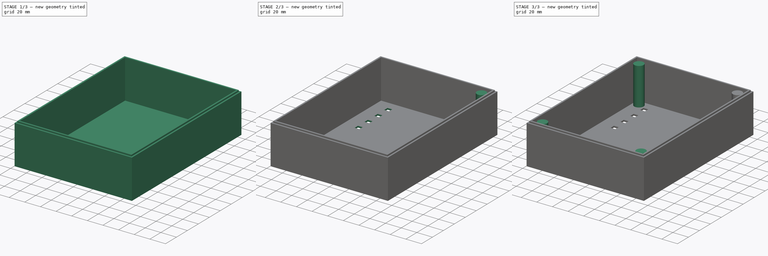
[diagram: build sequence overview — one tinted view per stage of 3, left to right]
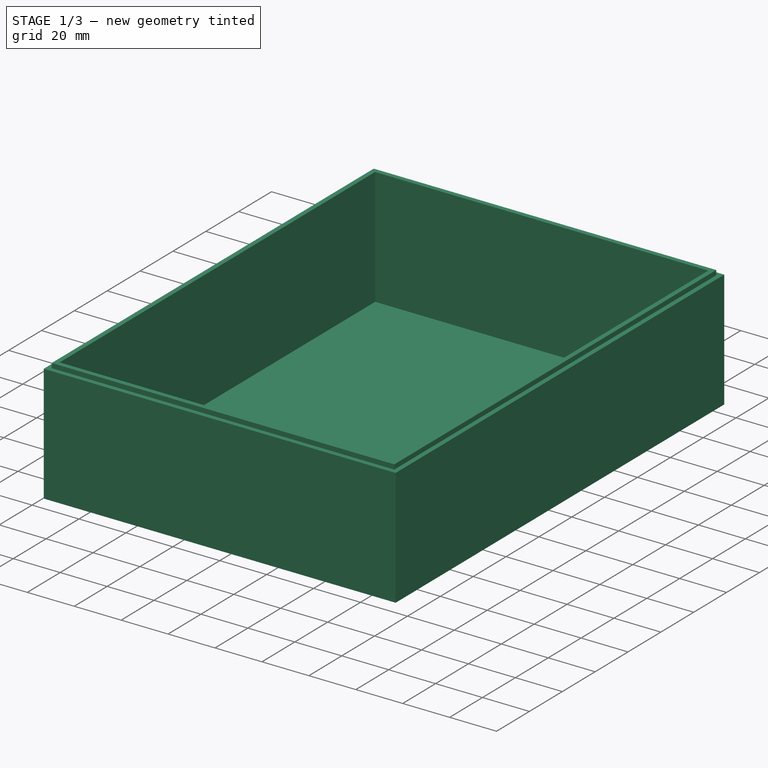
[diagram: stage 1 of 3 — iso view after this stage's code; geometry added in this stage tinted green]
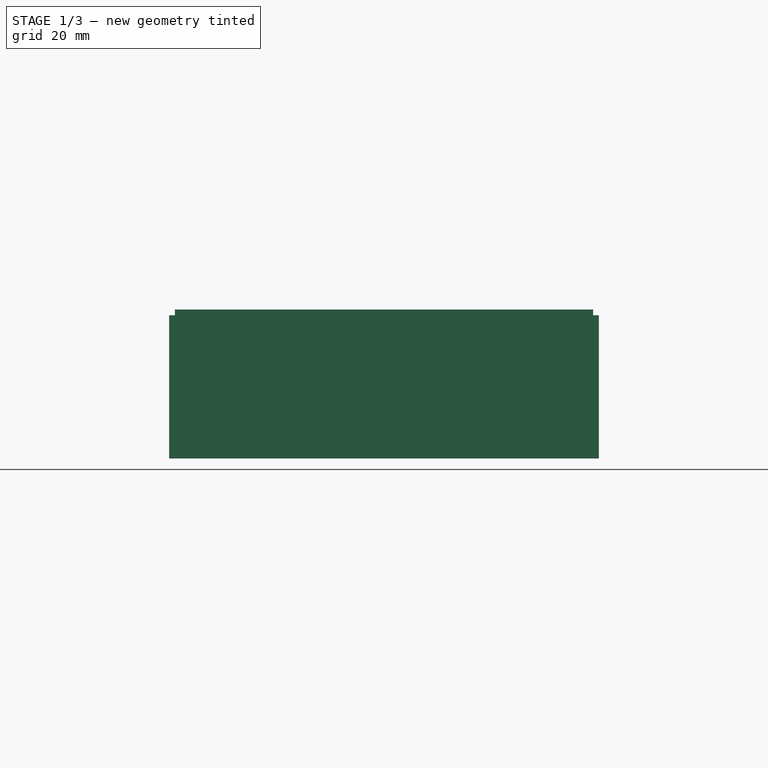
[diagram: stage 1 of 3 — front view after this stage's code; geometry added in this stage tinted green]
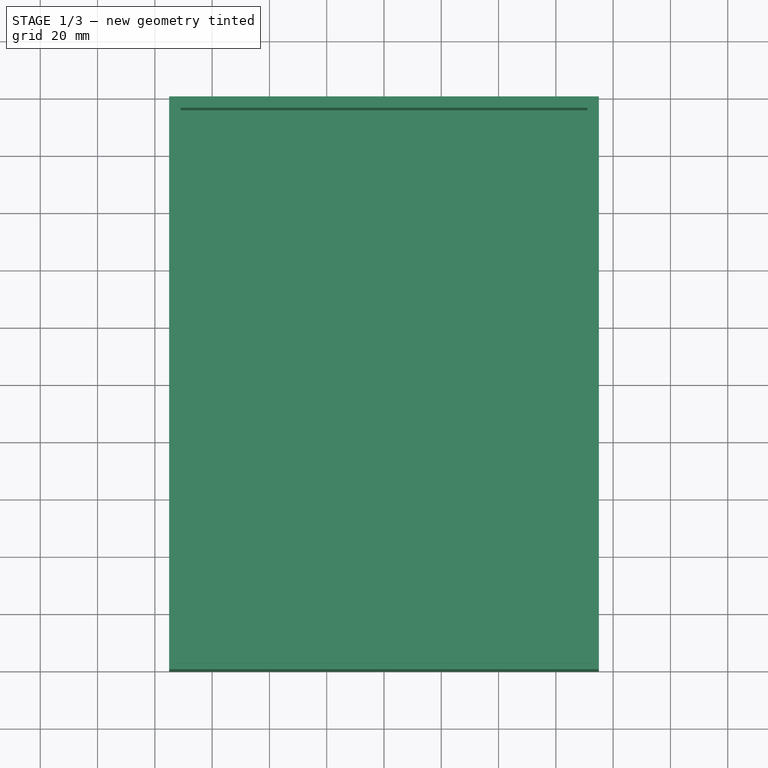
[diagram: stage 1 of 3 — top view after this stage's code; geometry added in this stage tinted green]
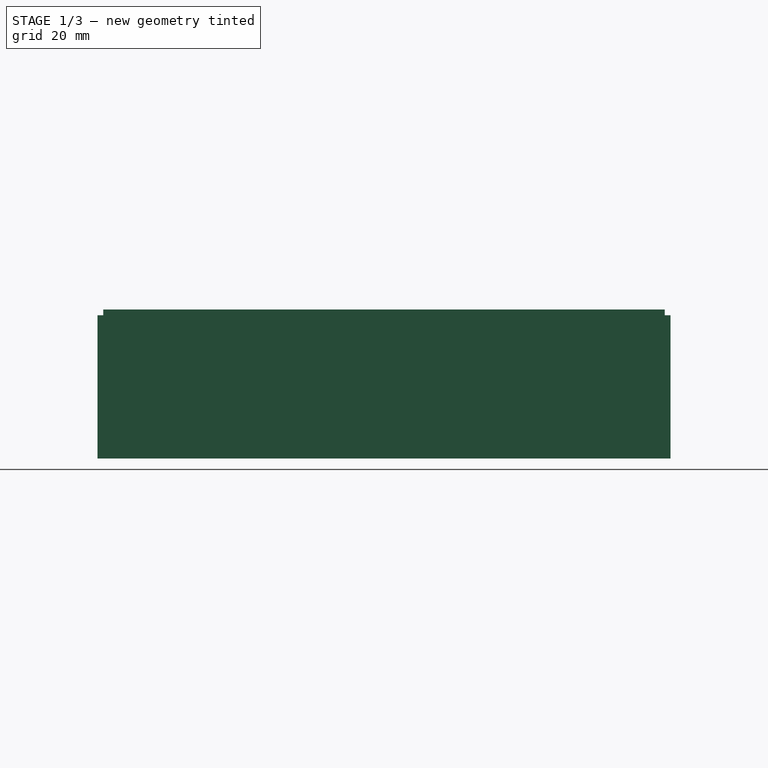
[diagram: stage 1 of 3 — right view after this stage's code; geometry added in this stage tinted green]
FCSTD DOCUMENT  (FreeCAD 0.19R24291 (Git))
Label: ten_button
License: All rights reserved
LicenseURL: http://en.wikipedia.org/wiki/All_rights_reserved
objects: Sketcher::SketchObject×6, PartDesign::Pad×3, PartDesign::Pocket×2, PartDesign::Mirrored×2, PartDesign::PolarPattern×1, PartDesign::Body×1
note: 20 computed .brp shape members not serialized (recipe doc carries the construction recipe); baked Part::Feature solids carry a one-line shape summary decoded from their .brp

FEATURE [Sketcher::SketchObject] Sketch
  FullyConstrained = true
  MapMode = 5
  Support = -> [XY_Plane]
  sketch-geometry (4):
    g0: LineSegment StartX=-75 StartY=100 StartZ=0 EndX=75 EndY=100 EndZ=0
    g1: LineSegment StartX=75 StartY=100 StartZ=0 EndX=75 EndY=-100 EndZ=0
    g2: LineSegment StartX=75 StartY=-100 StartZ=0 EndX=-75 EndY=-100 EndZ=0
    g3: LineSegment StartX=-75 StartY=-100 StartZ=0 EndX=-75 EndY=100 EndZ=0
  constraints (10):
    c: Coincident(g0,g1)
    c: Coincident(g1,g2)
    c: Coincident(g2,g3)
    c: Coincident(g3,g0)
    c: Horizontal(g0)
    c: Vertical(g3)
    c: Symmetric(g0,g1,g-1)
    c: Symmetric(g1,g2,g-2)
    c: DistanceX(g2,g2) = 150
    c: DistanceY(g1,g1) = 200
FEATURE [PartDesign::Pad] Pad  label="ExteriorPad"
  Direction = (1,1,1)
  Length = 50
  Length2 = 100
  Profile = -> Sketch
  Refine = true
  Type = 0
FEATURE [Sketcher::SketchObject] Sketch001
  FullyConstrained = true
  MapMode = 5
  Support = -> [XY_Plane]
  sketch-geometry (4):
    g0: LineSegment StartX=-73 StartY=98 StartZ=0 EndX=73 EndY=98 EndZ=0
    g1: LineSegment StartX=73 StartY=98 StartZ=0 EndX=73 EndY=-98 EndZ=0
    g2: LineSegment StartX=73 StartY=-98 StartZ=0 EndX=-73 EndY=-98 EndZ=0
    g3: LineSegment StartX=-73 StartY=-98 StartZ=0 EndX=-73 EndY=98 EndZ=0
  constraints (10):
    c: Coincident(g0,g1)
    c: Coincident(g1,g2)
    c: Coincident(g2,g3)
    c: Coincident(g3,g0)
    c: Horizontal(g0)
    c: Vertical(g3)
    c: Symmetric(g1,g2,g-2)
    c: Symmetric(g0,g1,g-1)
    c: DistanceX(g2,g2) = 146
    c: DistanceY(g1,g1) = 196
FEATURE [PartDesign::Pad] Pad001  label="InteriorPad"
  BaseFeature = -> Pad
  Direction = (1,1,1)
  Length = 52
  Length2 = 100
  Profile = -> Sketch001
  Refine = true
  Type = 0
FEATURE [Sketcher::SketchObject] Sketch002
  AttachmentOffset = pos=(0,0,52) rot=(0,0,1;0rad)
  FullyConstrained = true
  MapMode = 5
  Placement = pos=(0,0,52) rot=(0,0,1;0rad)
  Support = -> [XY_Plane]
  sketch-geometry (4):
    g0: LineSegment StartX=-71 StartY=96 StartZ=0 EndX=71 EndY=96 EndZ=0
    g1: LineSegment StartX=71 StartY=96 StartZ=0 EndX=71 EndY=-96 EndZ=0
    g2: LineSegment StartX=71 StartY=-96 StartZ=0 EndX=-71 EndY=-96 EndZ=0
    g3: LineSegment StartX=-71 StartY=-96 StartZ=0 EndX=-71 EndY=96 EndZ=0
  constraints (10):
    c: Coincident(g0,g1)
    c: Coincident(g1,g2)
    c: Coincident(g2,g3)
    c: Coincident(g3,g0)
    c: Horizontal(g2)
    c: Vertical(g3)
    c: DistanceX(g0,g0) = 142
    c: DistanceY(g1,g1) = 192
    c: Symmetric(g0,g1,g-1)
    c: Symmetric(g0,g0,g-2)
FEATURE [PartDesign::Pocket] Pocket  label="CentralPocket"
  BaseFeature = -> Pad001
  Length = 50
  Length2 = 100
  Profile = -> Sketch002
  Refine = true
  Type = 0
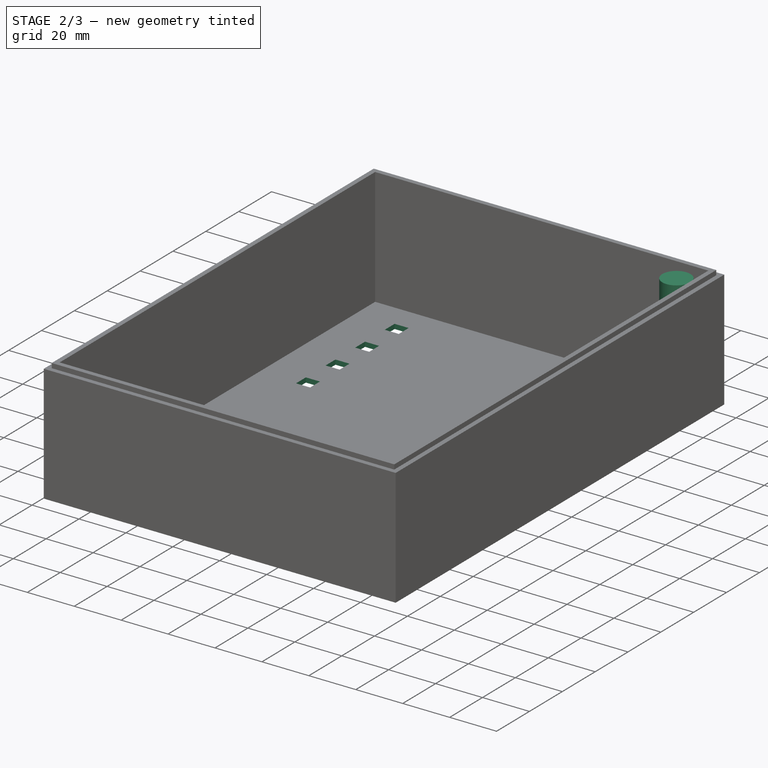
[diagram: stage 2 of 3 — iso view after this stage's code; geometry added in this stage tinted green]
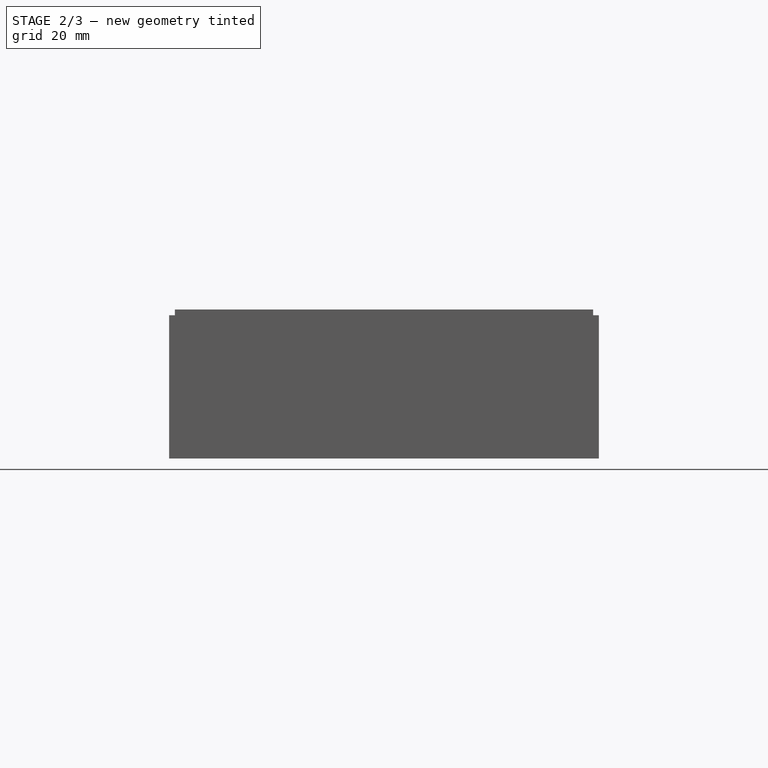
[diagram: stage 2 of 3 — front view after this stage's code; geometry added in this stage tinted green]
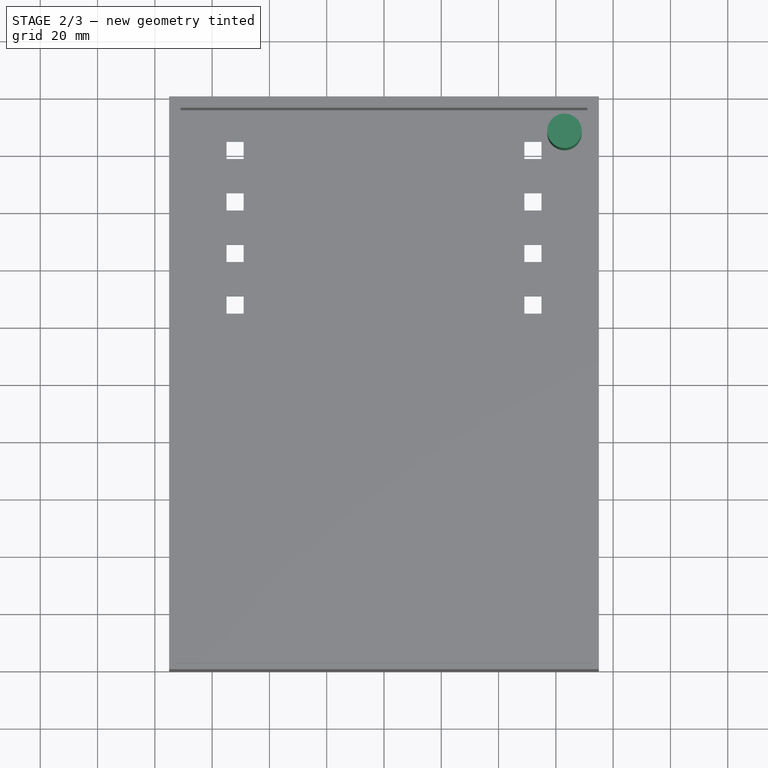
[diagram: stage 2 of 3 — top view after this stage's code; geometry added in this stage tinted green]
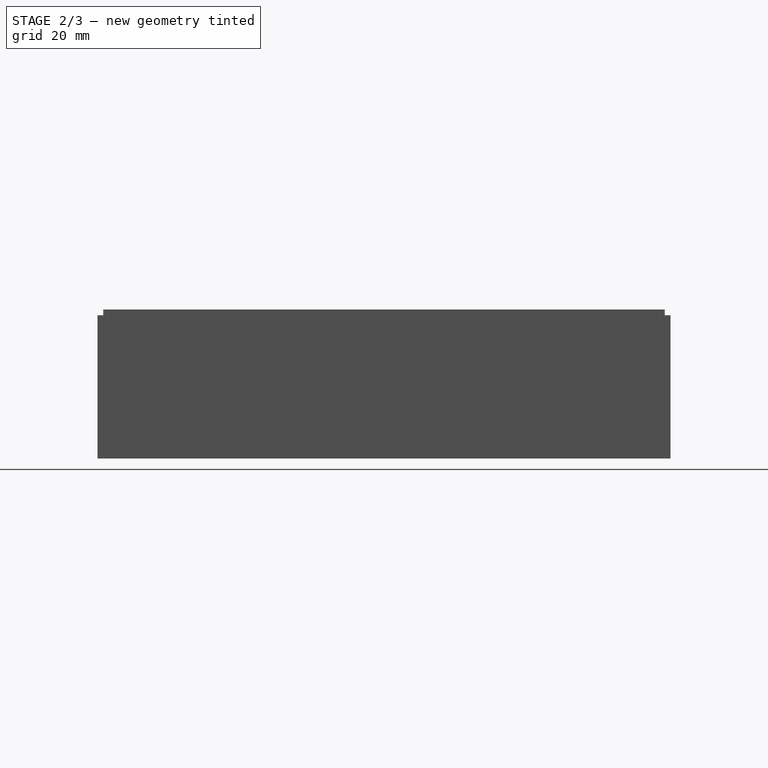
[diagram: stage 2 of 3 — right view after this stage's code; geometry added in this stage tinted green]
FEATURE [Sketcher::SketchObject] Sketch003
  ExternalGeometry = -> [Pocket]
  FullyConstrained = true
  MapMode = 5
  Support = -> [XY_Plane]
  sketch-geometry (32):
    g0: LineSegment StartX=49 StartY=85 StartZ=0 EndX=55 EndY=85 EndZ=0
    g1: LineSegment StartX=55 StartY=85 StartZ=0 EndX=55 EndY=79 EndZ=0
    g2: LineSegment StartX=55 StartY=79 StartZ=0 EndX=49 EndY=79 EndZ=0
    g3: LineSegment StartX=49 StartY=79 StartZ=0 EndX=49 EndY=85 EndZ=0
    g4: LineSegment StartX=49 StartY=67 StartZ=0 EndX=55 EndY=67 EndZ=0
    g5: LineSegment StartX=55 StartY=67 StartZ=0 EndX=55 EndY=61 EndZ=0
    g6: LineSegment StartX=55 StartY=61 StartZ=0 EndX=49 EndY=61 EndZ=0
    g7: LineSegment StartX=49 StartY=61 StartZ=0 EndX=49 EndY=67 EndZ=0
    g8: LineSegment StartX=49 StartY=49 StartZ=0 EndX=55 EndY=49 EndZ=0
    g9: LineSegment StartX=55 StartY=49 StartZ=0 EndX=55 EndY=43 EndZ=0
    g10: LineSegment StartX=55 StartY=43 StartZ=0 EndX=49 EndY=43 EndZ=0
    g11: LineSegment StartX=49 StartY=43 StartZ=0 EndX=49 EndY=49 EndZ=0
    g12: LineSegment StartX=49 StartY=31 StartZ=0 EndX=55 EndY=31 EndZ=0
    g13: LineSegment StartX=55 StartY=31 StartZ=0 EndX=55 EndY=25 EndZ=0
    g14: LineSegment StartX=55 StartY=25 StartZ=0 EndX=49 EndY=25 EndZ=0
    g15: LineSegment StartX=49 StartY=25 StartZ=0 EndX=49 EndY=31 EndZ=0
    g16: LineSegment StartX=-55 StartY=85 StartZ=0 EndX=-49 EndY=85 EndZ=0
    g17: LineSegment StartX=-49 StartY=85 StartZ=0 EndX=-49 EndY=79 EndZ=0
    g18: LineSegment StartX=-49 StartY=79 StartZ=0 EndX=-55 EndY=79 EndZ=0
    g19: LineSegment StartX=-55 StartY=79 StartZ=0 EndX=-55 EndY=85 EndZ=0
    g20: LineSegment StartX=-55 StartY=67 StartZ=0 EndX=-49 EndY=67 EndZ=0
    g21: LineSegment StartX=-49 StartY=67 StartZ=0 EndX=-49 EndY=61 EndZ=0
    g22: LineSegment StartX=-49 StartY=61 StartZ=0 EndX=-55 EndY=61 EndZ=0
    g23: LineSegment StartX=-55 StartY=61 StartZ=0 EndX=-55 EndY=67 EndZ=0
    g24: LineSegment StartX=-55 StartY=49 StartZ=0 EndX=-49 EndY=49 EndZ=0
    g25: LineSegment StartX=-49 StartY=49 StartZ=0 EndX=-49 EndY=43 EndZ=0
    g26: LineSegment StartX=-49 StartY=43 StartZ=0 EndX=-55 EndY=43 EndZ=0
    g27: LineSegment StartX=-55 StartY=43 StartZ=0 EndX=-55 EndY=49 EndZ=0
    g28: LineSegment StartX=-55 StartY=31 StartZ=0 EndX=-49 EndY=31 EndZ=0
    g29: LineSegment StartX=-49 StartY=31 StartZ=0 EndX=-49 EndY=25 EndZ=0
    g30: LineSegment StartX=-49 StartY=25 StartZ=0 EndX=-55 EndY=25 EndZ=0
    g31: LineSegment StartX=-55 StartY=25 StartZ=0 EndX=-55 EndY=31 EndZ=0
  constraints (96):
    c: Coincident(g0,g1)
    c: Coincident(g1,g2)
    c: Coincident(g2,g3)
    c: Coincident(g3,g0)
    c: Horizontal(g0)
    c: Horizontal(g2)
    c: Vertical(g1)
    c: Vertical(g3)
    c: Equal(g0,g3)
    c: DistanceY(g1,g1) = 6
    c: Coincident(g4,g5)
    c: Coincident(g5,g6)
    c: Coincident(g6,g7)
    c: Coincident(g7,g4)
    c: Horizontal(g4)
    c: Horizontal(g6)
    c: Vertical(g5)
    c: Vertical(g7)
    c: Equal(g4,g5)
    c: DistanceY(g7,g7) = 6
    c: Coincident(g8,g9)
    c: Coincident(g9,g10)
    c: Coincident(g10,g11)
    c: Coincident(g11,g8)
    c: Horizontal(g8)
    c: Horizontal(g10)
    c: Vertical(g9)
    c: Vertical(g11)
    c: Coincident(g12,g13)
    c: Coincident(g13,g14)
    c: Coincident(g14,g15)
    c: Coincident(g15,g12)
    c: Horizontal(g12)
    c: Horizontal(g14)
    c: Vertical(g13)
    c: Vertical(g15)
    c: Equal(g8,g11)
    c: Equal(g12,g13)
    c: DistanceY(g11,g11) = 6
    c: DistanceY(g15,g15) = 6
    c: DistanceY(g0,g-3) = 15
    c: DistanceY(g4,g-3) = 33
    c: DistanceY(g8,g-3) = 51
    c: DistanceY(g12,g-3) = 69
    c: DistanceX(g0,g-3) = 20
    c: DistanceX(g4,g-3) = 20
    c: DistanceX(g8,g-3) = 20
    c: DistanceX(g12,g-3) = 20
    c: Coincident(g16,g17)
    c: Coincident(g17,g18)
    c: Coincident(g18,g19)
    c: Coincident(g19,g16)
    c: Horizontal(g16)
    c: Horizontal(g18)
    c: Vertical(g17)
    c: Vertical(g19)
    c: Equal(g16,g17)
    c: DistanceY(g17,g17) = 6
    c: DistanceX(g-4,g16) = 20
    c: DistanceY(g16,g-4) = 15
    c: Coincident(g20,g21)
    c: Coincident(g21,g22)
    c: Coincident(g22,g23)
    c: Coincident(g23,g20)
    c: Horizontal(g20)
    c: Horizontal(g22)
    c: Vertical(g21)
    c: Vertical(g23)
    c: Coincident(g24,g25)
    c: Coincident(g25,g26)
    c: Coincident(g26,g27)
    c: Coincident(g27,g24)
    c: Horizontal(g24)
    c: Horizontal(g26)
    c: Vertical(g25)
    c: Vertical(g27)
    c: Coincident(g28,g29)
    c: Coincident(g29,g30)
    c: Coincident(g30,g31)
    c: Coincident(g31,g28)
    c: Horizontal(g28)
    c: Horizontal(g30)
    c: Vertical(g29)
    c: Vertical(g31)
    c: Equal(g29,g28)
    c: Equal(g24,g25)
    c: Equal(g20,g21)
    c: DistanceY(g21,g21) = 6
    c: DistanceY(g25,g25) = 6
    c: DistanceY(g29,g29) = 6
    c: DistanceX(g-4,g20) = 20
    c: DistanceX(g-4,g24) = 20
    c: DistanceX(g-4,g28) = 20
    c: DistanceY(g20,g-4) = 33
    c: DistanceY(g24,g-4) = 51
    c: DistanceY(g28,g-4) = 69
FEATURE [PartDesign::Pocket] Pocket001  label="ButtonHoles"
  BaseFeature = -> Pocket
  Length = 5
  Length2 = 100
  Profile = -> Sketch003
  Refine = true
  Reversed = true
  Type = 0
FEATURE [Sketcher::SketchObject] Sketch004
  ExternalGeometry = -> [Pocket001]
  FullyConstrained = true
  MapMode = 5
  Support = -> [XY_Plane]
  sketch-geometry (1):
    g0: Circle CenterX=63 CenterY=88 CenterZ=0 NormalX=0 NormalY=0 NormalZ=1 AngleXU=0 Radius=6
  constraints (3):
    c: DistanceX(g0,g-3) = 12
    c: DistanceY(g0,g-3) = 12
    c: Radius(g0) = 6
FEATURE [PartDesign::Pad] Pad002  label="ScrewPillar"
  BaseFeature = -> Pocket001
  Direction = (1,1,1)
  Length = 50
  Length2 = 100
  Profile = -> Sketch004
  Refine = true
  Type = 0
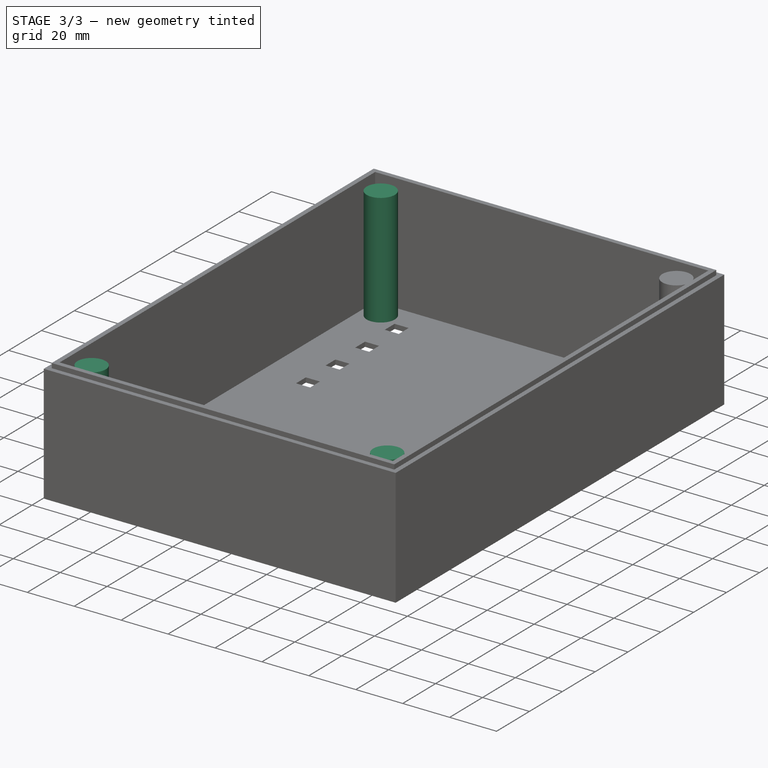
[diagram: stage 3 of 3 — iso view after this stage's code; geometry added in this stage tinted green]
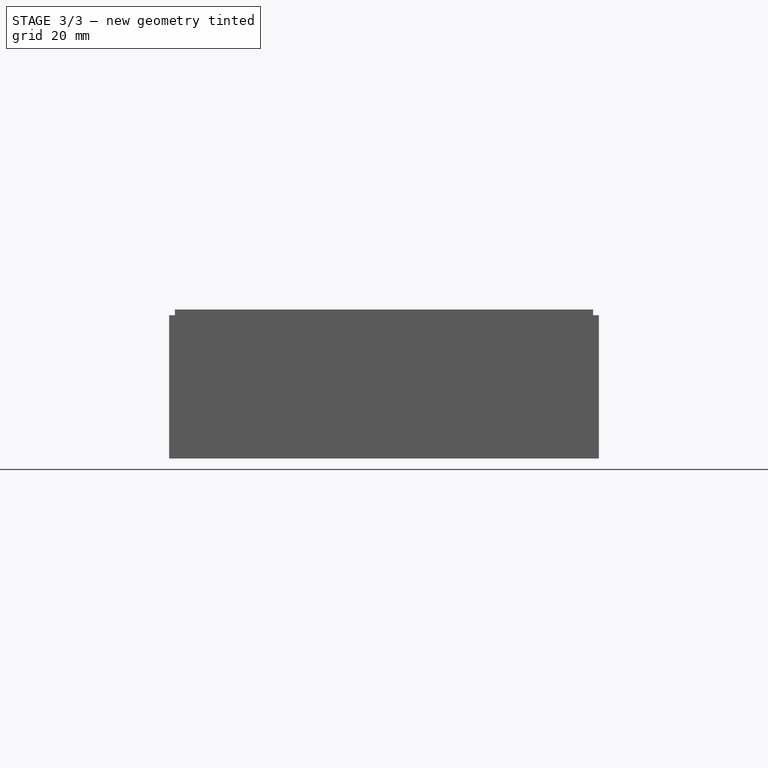
[diagram: stage 3 of 3 — front view after this stage's code; geometry added in this stage tinted green]
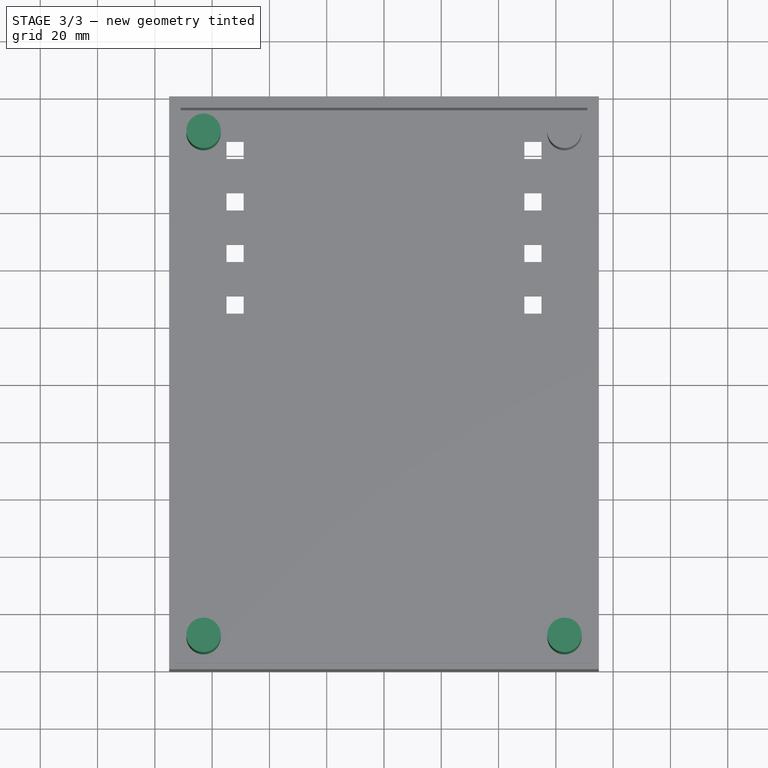
[diagram: stage 3 of 3 — top view after this stage's code; geometry added in this stage tinted green]
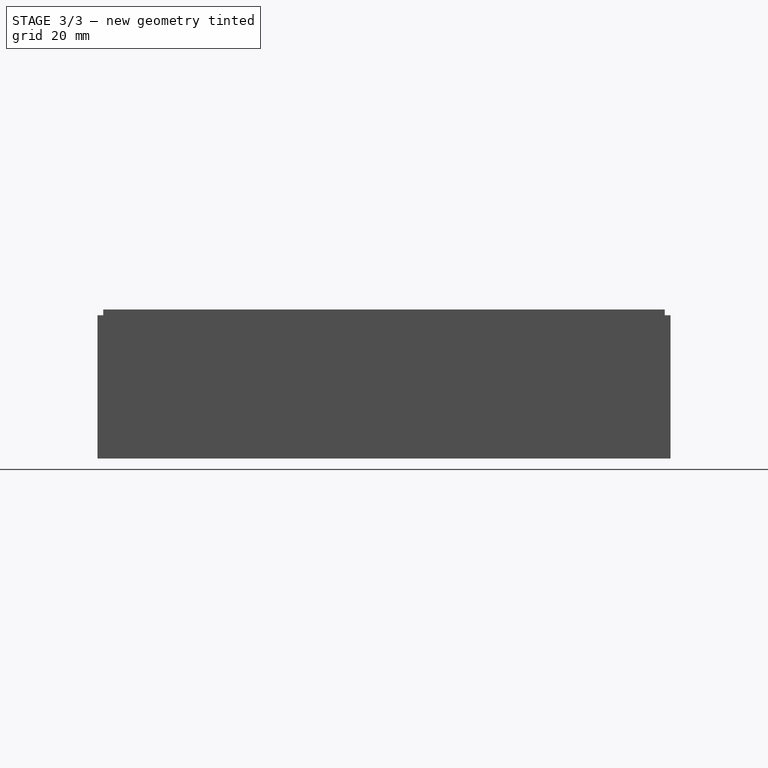
[diagram: stage 3 of 3 — right view after this stage's code; geometry added in this stage tinted green]
FEATURE [PartDesign::Mirrored] Mirrored
  BaseFeature = -> Pad002
  MirrorPlane = -> Sketch004 [V_Axis]
  Originals = -> [Pad002]
  Refine = true
FEATURE [PartDesign::Mirrored] Mirrored001
  BaseFeature = -> Mirrored
  MirrorPlane = -> Sketch004 [H_Axis]
  Originals = -> [Pad002]
  Refine = true
FEATURE [PartDesign::PolarPattern] PolarPattern
  Angle = 360
  Axis = -> Sketch004 [N_Axis]
  BaseFeature = -> Mirrored001
  Occurrences = 2
  Originals = -> [Pad002]
  Refine = true
FEATURE [Sketcher::SketchObject] Sketch005
  AttachmentOffset = pos=(0,110,0) rot=(0,0,1;0rad)
  FullyConstrained = true
  MapMode = 5
  Placement = pos=(0,2.44e-14,110) rot=(1,0,0;1.5708rad)
  Support = -> [XZ_Plane]
  sketch-geometry (1):
    g0: Circle CenterX=36 CenterY=26 CenterZ=0 NormalX=0 NormalY=0 NormalZ=1 AngleXU=0 Radius=1
  constraints (3):
    c: DistanceX(g0) = 36
    c: DistanceY(g-1,g0) = 26
    c: Radius(g0) = 1
FEATURE [PartDesign::Body] Body
  Group = -> [Sketch,Pad,Sketch001,Pad001,Sketch002,Pocket,Sketch003,Pocket001,Sketch004,Pad002,Mirrored,Mirrored001,PolarPattern,Sketch005]
  Origin = -> Origin
  Tip = -> PolarPattern
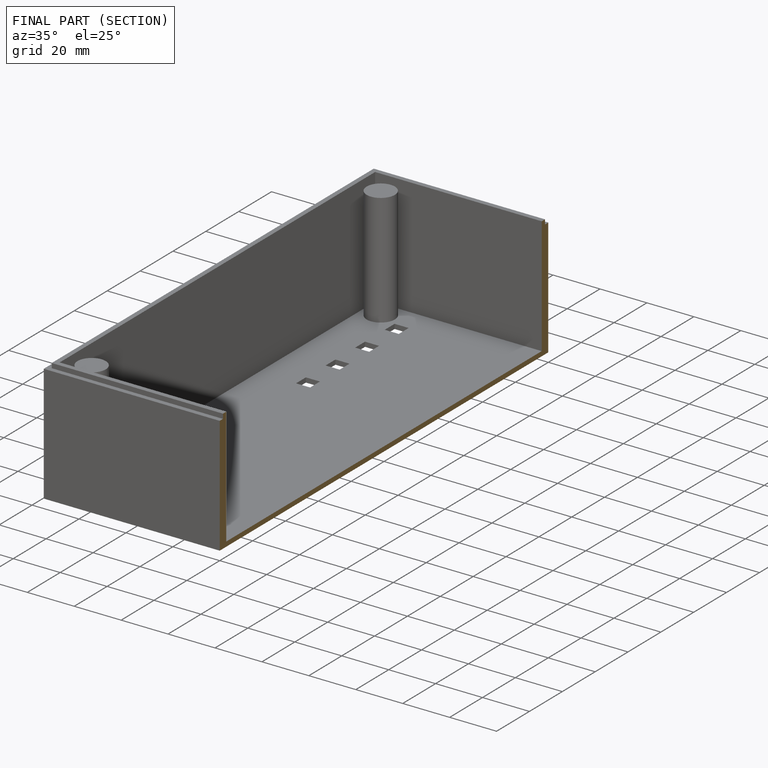
[diagram: finished part — half-section view (interior)]
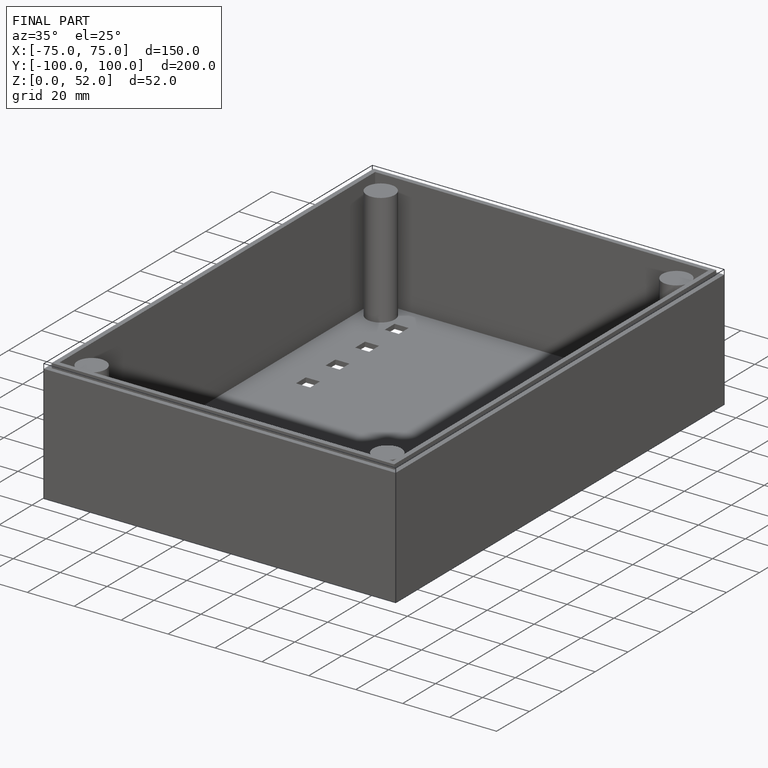
[diagram: finished part — iso view with bounding-box wireframe]
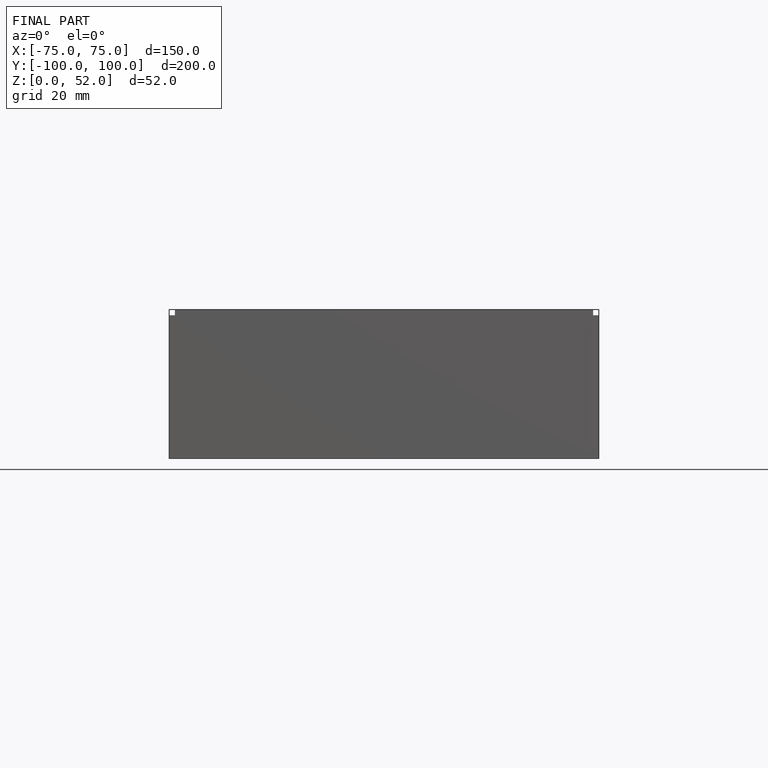
[diagram: finished part — front view with bounding-box wireframe]
